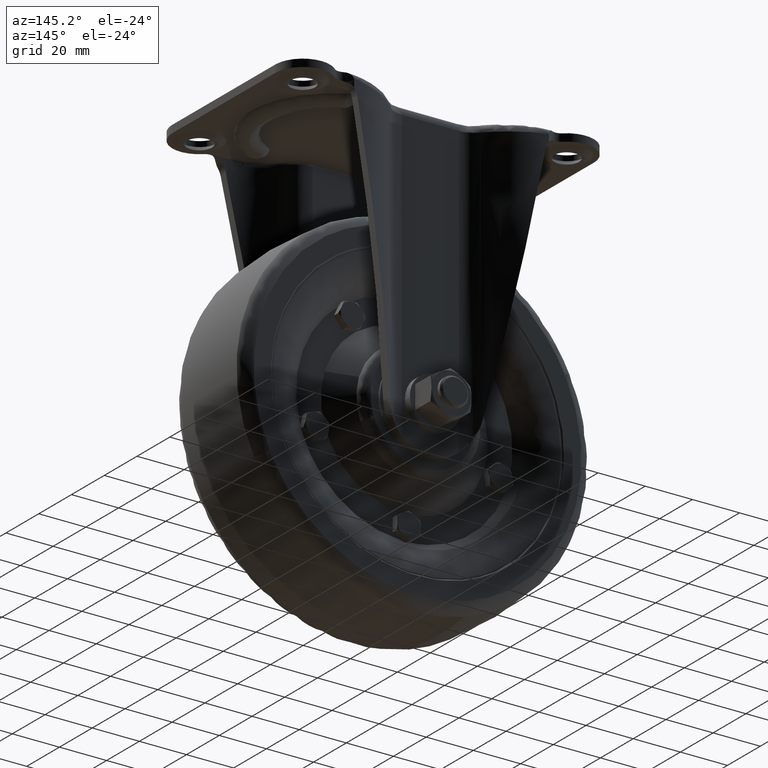
[diagram: clean part render]
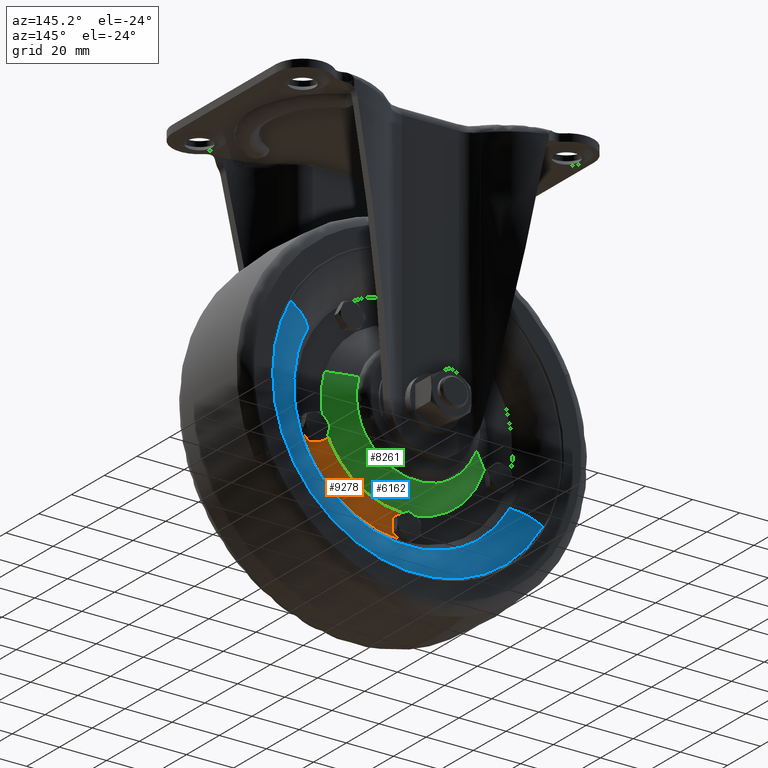
[diagram: same view with three faces highlighted in distinct colors, each labeled with its STEP entity id]
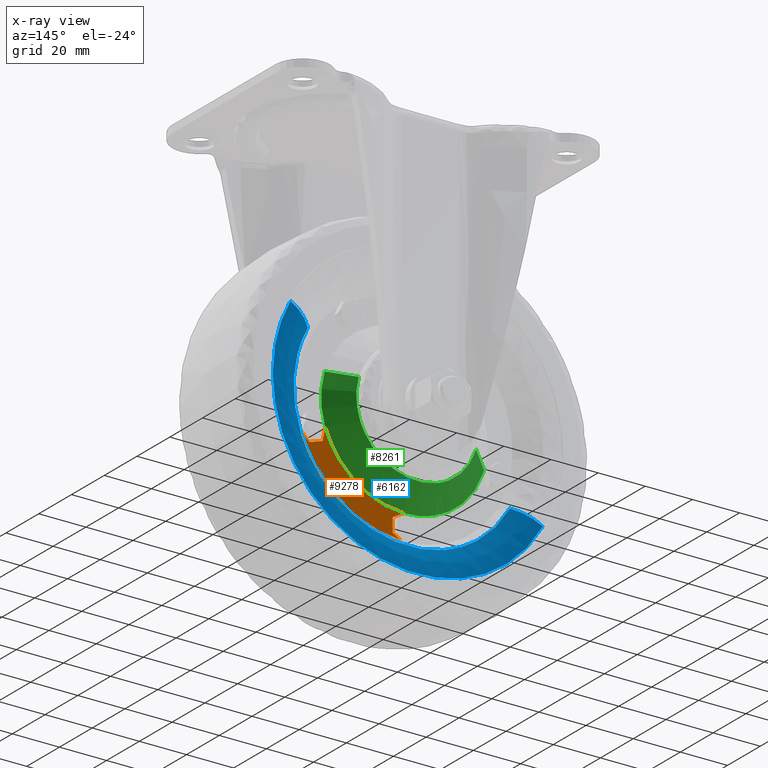
[diagram: x-ray of the same camera — body ghosted, the three highlighted faces saturated]
A machine part, auxiliary view with three faces highlighted in distinct colors.
The next image is the same camera in x-ray (body ghosted, the three faces saturated) — at least one of them is partly hidden behind the body in this view.
Their STEP definitions:

[orange] entity #9278 — the highlighted face is a freeform B-spline surface patch.
#8214=CARTESIAN_POINT('',(33.554546786596561,13.0,-123.130977096347000));
#8215=VERTEX_POINT('',#8214);
#8223=CARTESIAN_POINT('',(0.217257236694273,13.0,-147.351936153729210));
#8224=VERTEX_POINT('',#8223);
#8225=CARTESIAN_POINT('',(0.217257236694266,13.0,-147.351936153729210));
#8226=CARTESIAN_POINT('',(25.571472345056275,13.000000000000005,-147.196118388223200));
#8227=CARTESIAN_POINT('',(33.554546786596582,13.0,-123.130977096347000));
#8235=(BOUNDED_CURVE()B_SPLINE_CURVE(2,(#8225,#8226,#8227),.UNSPECIFIED.,.F.,.U.)CURVE()GEOMETRIC_REPRESENTATION_ITEM()QUASI_UNIFORM_CURVE()RATIONAL_B_SPLINE_CURVE((1.0,0.812613957784510,1.0))REPRESENTATION_ITEM(''));
#8236=EDGE_CURVE('',#8224,#8215,#8235,.T.);
#8301=CARTESIAN_POINT('',(1.566543894012149,13.0,-157.869061000644990));
#8302=VERTEX_POINT('',#8301);
#8310=CARTESIAN_POINT('',(42.976972618874001,13.000000000021791,-128.106030985741710));
#8311=VERTEX_POINT('',#8310);
#8312=CARTESIAN_POINT('',(1.566543894012149,13.0,-157.869061000644990));
#8313=CARTESIAN_POINT('',(32.215268684254141,13.000000000010891,-156.822327923637720));
#8314=CARTESIAN_POINT('',(42.976972618874008,13.000000000021783,-128.106030985741710));
#8322=(BOUNDED_CURVE()B_SPLINE_CURVE(2,(#8312,#8313,#8314),.UNSPECIFIED.,.F.,.U.)B_SPLINE_CURVE_WITH_KNOTS((3,3),(0.0,0.990849707425432),.UNSPECIFIED.)CURVE()GEOMETRIC_REPRESENTATION_ITEM()RATIONAL_B_SPLINE_CURVE((1.0,0.830176557809240,0.996892131635869))REPRESENTATION_ITEM(''));
#8323=EDGE_CURVE('',#8302,#8311,#8322,.T.);
#8353=CARTESIAN_POINT('',(43.139974311081950,13.0,-127.664195560999200));
#8354=VERTEX_POINT('',#8353);
#8355=CARTESIAN_POINT('',(42.976972618874001,13.000000000021787,-128.106030985741630));
#8356=CARTESIAN_POINT('',(43.059606915109107,13.000000000010896,-127.885531425195920));
#8357=CARTESIAN_POINT('',(43.139974311081950,13.0,-127.664195560999200));
#8365=(BOUNDED_CURVE()B_SPLINE_CURVE(2,(#8355,#8356,#8357),.UNSPECIFIED.,.F.,.U.)B_SPLINE_CURVE_WITH_KNOTS((3,3),(0.990849707425432,1.0),.UNSPECIFIED.)CURVE()GEOMETRIC_REPRESENTATION_ITEM()RATIONAL_B_SPLINE_CURVE((0.996892131635869,0.998431715556436,1.0))REPRESENTATION_ITEM(''));
#8366=EDGE_CURVE('',#8311,#8354,#8365,.T.);
#9080=CARTESIAN_POINT('',(40.193694121953449,13.0,-130.317038376803310));
#9081=VERTEX_POINT('',#9080);
#9091=CARTESIAN_POINT('',(40.193694121953449,13.0,-130.317038376803310));
#9092=CARTESIAN_POINT('',(43.139974311081950,13.0,-127.664195560999200));
#9093=QUASI_UNIFORM_CURVE('',1,(#9091,#9092),.UNSPECIFIED.,.F.,.U.);
#9094=EDGE_CURVE('',#9081,#8354,#9093,.T.);
#9104=CARTESIAN_POINT('',(34.702766986663953,13.0,-128.532927324363610));
#9105=VERTEX_POINT('',#9104);
#9114=CARTESIAN_POINT('',(34.702766986663953,13.0,-128.532927324363610));
#9115=CARTESIAN_POINT('',(40.193694121953449,13.0,-130.317038376803310));
#9116=QUASI_UNIFORM_CURVE('',1,(#9114,#9115),.UNSPECIFIED.,.F.,.U.);
#9117=EDGE_CURVE('',#9105,#9081,#9116,.T.);
#9131=CARTESIAN_POINT('',(33.554546786596561,13.0,-123.130977096347000));
#9132=CARTESIAN_POINT('',(34.702766986663953,13.0,-128.532927324363610));
#9133=QUASI_UNIFORM_CURVE('',1,(#9131,#9132),.UNSPECIFIED.,.F.,.U.);
#9134=EDGE_CURVE('',#8215,#9105,#9133,.T.);
#9152=CARTESIAN_POINT('',(4.999997651370855,13.0,-155.886755360427800));
#9153=VERTEX_POINT('',#9152);
#9159=CARTESIAN_POINT('',(1.566543894012149,13.0,-157.869061000644990));
#9160=CARTESIAN_POINT('',(4.999997651370855,13.0,-155.886755360427800));
#9161=QUASI_UNIFORM_CURVE('',1,(#9159,#9160),.UNSPECIFIED.,.F.,.U.);
#9162=EDGE_CURVE('',#8302,#9153,#9161,.T.);
#9226=CARTESIAN_POINT('',(4.999997342852353,13.0,-150.113253001869910));
#9227=VERTEX_POINT('',#9226);
#9237=CARTESIAN_POINT('',(4.999997342852353,13.0,-150.113253001869910));
#9238=CARTESIAN_POINT('',(0.217257236694273,13.0,-147.351936153729210));
#9239=QUASI_UNIFORM_CURVE('',1,(#9237,#9238),.UNSPECIFIED.,.F.,.U.);
#9240=EDGE_CURVE('',#9227,#8224,#9239,.T.);
#9254=CARTESIAN_POINT('',(4.999997651370855,13.0,-155.886755360427800));
#9255=CARTESIAN_POINT('',(4.999997342852353,13.0,-150.113253001869910));
#9256=QUASI_UNIFORM_CURVE('',1,(#9254,#9255),.UNSPECIFIED.,.F.,.U.);
#9257=EDGE_CURVE('',#9153,#9227,#9256,.T.);
#9262=CARTESIAN_POINT('',(-5.057574106259793,13.0,-157.971078725620200));
#9263=CARTESIAN_POINT('',(9.531333929291307,13.0,-113.071036712096300));
#9264=CARTESIAN_POINT('',(31.280791425698741,13.0,-169.778129435022810));
#9265=CARTESIAN_POINT('',(45.869699461249837,13.0,-124.878087421498800));
#9266=B_SPLINE_SURFACE_WITH_KNOTS('',1,1,((#9262,#9264),(#9263,#9265)),.UNSPECIFIED.,.F.,.F.,.U.,(2,2),(2,2),(0.0,47.210696866603172),(0.0,38.208417694584469),.UNSPECIFIED.);
#9267=ORIENTED_EDGE('',*,*,#8236,.T.);
#9268=ORIENTED_EDGE('',*,*,#9134,.T.);
#9269=ORIENTED_EDGE('',*,*,#9117,.T.);
#9270=ORIENTED_EDGE('',*,*,#9094,.T.);
#9271=ORIENTED_EDGE('',*,*,#8366,.F.);
#9272=ORIENTED_EDGE('',*,*,#8323,.F.);
#9273=ORIENTED_EDGE('',*,*,#9162,.T.);
#9274=ORIENTED_EDGE('',*,*,#9257,.T.);
#9275=ORIENTED_EDGE('',*,*,#9240,.T.);
#9276=EDGE_LOOP('',(#9267,#9268,#9269,#9270,#9271,#9272,#9273,#9274,#9275));
#9277=FACE_OUTER_BOUND('',#9276,.T.);
#9278=ADVANCED_FACE('',(#9277),#9266,.T.);

[blue] entity #6162 — the highlighted face is a freeform B-spline surface patch.
#5783=CARTESIAN_POINT('',(-18.870801556832578,20.500000000000000,-170.078349246225800));
#5784=VERTEX_POINT('',#5783);
#5785=CARTESIAN_POINT('',(53.513581296547933,20.499999999999989,-82.580661048150475));
#5786=VERTEX_POINT('',#5785);
#5787=CARTESIAN_POINT('',(-18.870801556832578,20.500000000000000,-170.078349246225800));
#5788=CARTESIAN_POINT('',(39.207544828135426,20.499999999999993,-188.949147942164470));
#5789=CARTESIAN_POINT('',(58.078343523351947,20.499999999999989,-130.870801557287710));
#5790=CARTESIAN_POINT('',(66.244467328839718,20.499999999999993,-105.738056798735040));
#5791=CARTESIAN_POINT('',(53.513581296547933,20.500000000000000,-82.580661048150475));
#5799=(BOUNDED_CURVE()B_SPLINE_CURVE(2,(#5787,#5788,#5789,#5790,#5791),.UNSPECIFIED.,.F.,.U.)B_SPLINE_CURVE_WITH_KNOTS((3,2,3),(0.0,0.250000000000000,0.379740687157083),.UNSPECIFIED.)CURVE()GEOMETRIC_REPRESENTATION_ITEM()RATIONAL_B_SPLINE_CURVE((1.0,0.707106781186548,1.0,0.847999330109972,0.853764031098897))REPRESENTATION_ITEM(''));
#5800=EDGE_CURVE('',#5784,#5786,#5799,.T.);
#5817=CARTESIAN_POINT('',(-53.513587018593817,20.499999999999989,-141.419344673895410));
#5818=VERTEX_POINT('',#5817);
#5834=CARTESIAN_POINT('',(-53.513587018593832,20.500000000000000,-141.419344673895380));
#5835=CARTESIAN_POINT('',(-41.865645594811390,20.500000000000000,-162.606871493840540));
#5836=CARTESIAN_POINT('',(-18.870801556832578,20.500000000000000,-170.078349246225800));
#5844=(BOUNDED_CURVE()B_SPLINE_CURVE(2,(#5834,#5835,#5836),.UNSPECIFIED.,.F.,.U.)B_SPLINE_CURVE_WITH_KNOTS((3,3),(0.879740687157083,1.0),.UNSPECIFIED.)CURVE()GEOMETRIC_REPRESENTATION_ITEM()RATIONAL_B_SPLINE_CURVE((0.853764031098897,0.859107451076576,1.0))REPRESENTATION_ITEM(''));
#5845=EDGE_CURVE('',#5818,#5784,#5844,.T.);
#6060=CARTESIAN_POINT('',(-42.418873943854273,15.294726801716376,-135.319974553232700));
#6061=CARTESIAN_POINT('',(-19.098902251644503,15.294726801716386,-177.738845636064040));
#6062=CARTESIAN_POINT('',(23.319968831186827,15.294726801716376,-154.418873943854320));
#6063=CARTESIAN_POINT('',(65.738839914018143,15.294726801716386,-131.098902251644520));
#6064=CARTESIAN_POINT('',(42.418868221808367,15.294726801716376,-88.680031168813144));
#6065=CARTESIAN_POINT('',(-47.267542998589207,20.769868129758610,-137.985552920005400));
#6066=CARTESIAN_POINT('',(-21.281992939606816,20.769868129758606,-185.253093057571700));
#6067=CARTESIAN_POINT('',(25.985547197959470,20.769868129758610,-159.267542998589280));
#6068=CARTESIAN_POINT('',(73.253087335525748,20.769868129758606,-133.281992939606820));
#6069=CARTESIAN_POINT('',(47.267537276543337,20.769868129758610,-86.014452802040509));
#6070=CARTESIAN_POINT('',(-54.084327204597940,20.488212970931325,-141.733111746019570));
#6071=CARTESIAN_POINT('',(-24.351218319601262,20.488212970931325,-195.817436089594570));
#6072=CARTESIAN_POINT('',(29.733106023973740,20.488212970931325,-166.084327204597940));
#6073=CARTESIAN_POINT('',(83.817430367548766,20.488212970931325,-136.351218319601290));
#6074=CARTESIAN_POINT('',(54.084321482552056,20.488212970931325,-82.266893976026239));
#6082=(BOUNDED_SURFACE()B_SPLINE_SURFACE(2,2,((#6060,#6065,#6070),(#6061,#6066,#6071),(#6062,#6067,#6072),(#6063,#6068,#6073),(#6064,#6069,#6074)),.UNSPECIFIED.,.F.,.F.,.U.)B_SPLINE_SURFACE_WITH_KNOTS((3,2,3),(3,3),(0.0,102.258538464007200,204.517076928014400),(0.0,14.901338644433320),.UNSPECIFIED.)GEOMETRIC_REPRESENTATION_ITEM()RATIONAL_B_SPLINE_SURFACE(((0.932049626559043,0.855259187774871,0.931562023693775),(0.659058611342288,0.604759571347710,0.658713824049731),(0.932049626559043,0.855259187774871,0.931562023693775),(0.659058611342288,0.604759571347710,0.658713824049731),(0.932049626559043,0.855259187774871,0.931562023693775)))REPRESENTATION_ITEM('')SURFACE());
#6083=ORIENTED_EDGE('',*,*,#5845,.F.);
#6084=CARTESIAN_POINT('',(-42.831620992549666,15.744237116279001,-135.546884163149510));
#6085=VERTEX_POINT('',#6084);
#6086=CARTESIAN_POINT('',(-42.831620992549674,15.744237116279001,-135.546884163149460));
#6087=CARTESIAN_POINT('',(-47.359639724146632,20.499999999471875,-138.036183523247250));
#6088=CARTESIAN_POINT('',(-53.513587018593824,20.499999999999993,-141.419344673895470));
#6096=(BOUNDED_CURVE()B_SPLINE_CURVE(2,(#6086,#6087,#6088),.UNSPECIFIED.,.F.,.U.)B_SPLINE_CURVE_WITH_KNOTS((3,3),(-1.547021417535113,-0.456797857099042),.UNSPECIFIED.)CURVE()GEOMETRIC_REPRESENTATION_ITEM()RATIONAL_B_SPLINE_CURVE((0.925390761317573,0.861895910437845,0.924947443623621))REPRESENTATION_ITEM(''));
#6097=EDGE_CURVE('',#6085,#5818,#6096,.T.);
#6098=ORIENTED_EDGE('',*,*,#6097,.F.);
#6099=CARTESIAN_POINT('',(-15.103959291285809,15.744237115458660,-158.485200837227810));
#6100=VERTEX_POINT('',#6099);
#6101=CARTESIAN_POINT('',(-42.831620992549674,15.744237116279004,-135.546884163149490));
#6102=CARTESIAN_POINT('',(-33.508751164975529,15.744237115868827,-152.505121443036840));
#6103=CARTESIAN_POINT('',(-15.103959291285809,15.744237115458660,-158.485200837227810));
#6111=(BOUNDED_CURVE()B_SPLINE_CURVE(2,(#6101,#6102,#6103),.UNSPECIFIED.,.F.,.U.)B_SPLINE_CURVE_WITH_KNOTS((3,3),(0.879740687157076,1.0),.UNSPECIFIED.)CURVE()GEOMETRIC_REPRESENTATION_ITEM()RATIONAL_B_SPLINE_CURVE((0.853764031098896,0.859107451076568,1.0))REPRESENTATION_ITEM(''));
#6112=EDGE_CURVE('',#6085,#6100,#6111,.T.);
#6113=ORIENTED_EDGE('',*,*,#6112,.T.);
#6114=CARTESIAN_POINT('',(45.768979128128777,15.744237115969790,-129.152361837413590));
#6115=VERTEX_POINT('',#6114);
#6116=CARTESIAN_POINT('',(-15.103959291285809,15.744237115458660,-158.485200837227810));
#6117=CARTESIAN_POINT('',(29.361773356178674,15.744237115592469,-172.932993205130770));
#6118=CARTESIAN_POINT('',(45.768979128128784,15.744237115969797,-129.152361837413620));
#6126=(BOUNDED_CURVE()B_SPLINE_CURVE(2,(#6116,#6117,#6118),.UNSPECIFIED.,.F.,.U.)B_SPLINE_CURVE_WITH_KNOTS((3,3),(0.0,0.242221278145373),.UNSPECIFIED.)CURVE()GEOMETRIC_REPRESENTATION_ITEM()RATIONAL_B_SPLINE_CURVE((1.0,0.716220120715573,0.982340442008854))REPRESENTATION_ITEM(''));
#6127=EDGE_CURVE('',#6100,#6115,#6126,.T.);
#6128=ORIENTED_EDGE('',*,*,#6127,.T.);
#6129=CARTESIAN_POINT('',(42.831615270503782,15.744237116279010,-88.453121558896470));
#6130=VERTEX_POINT('',#6129);
#6131=CARTESIAN_POINT('',(45.768979128128784,15.744237115969797,-129.152361837413620));
#6132=CARTESIAN_POINT('',(46.149828384158390,15.744237115980090,-128.136111958137720));
#6133=CARTESIAN_POINT('',(46.485195115778772,15.744237115990259,-127.103959291005490));
#6134=CARTESIAN_POINT('',(53.021260714113666,15.744237116188440,-106.988017834090100));
#6135=CARTESIAN_POINT('',(42.831615270503789,15.744237116279004,-88.453121558896456));
#6143=(BOUNDED_CURVE()B_SPLINE_CURVE(2,(#6131,#6132,#6133,#6134,#6135),.UNSPECIFIED.,.F.,.U.)B_SPLINE_CURVE_WITH_KNOTS((3,2,3),(0.242221278145373,0.250000000000000,0.379740687157076),.UNSPECIFIED.)CURVE()GEOMETRIC_REPRESENTATION_ITEM()RATIONAL_B_SPLINE_CURVE((0.982340442008854,0.990886660470975,1.0,0.847999330109979,0.853764031098896))REPRESENTATION_ITEM(''));
#6144=EDGE_CURVE('',#6115,#6130,#6143,.T.);
#6145=ORIENTED_EDGE('',*,*,#6144,.T.);
#6146=CARTESIAN_POINT('',(42.831615270503775,15.744237116279008,-88.453121558896470));
#6147=CARTESIAN_POINT('',(47.359634002100741,20.499999999471893,-85.963822198798624));
#6148=CARTESIAN_POINT('',(53.513581296547933,20.499999999999989,-82.580661048150475));
#6156=(BOUNDED_CURVE()B_SPLINE_CURVE(2,(#6146,#6147,#6148),.UNSPECIFIED.,.F.,.U.)B_SPLINE_CURVE_WITH_KNOTS((3,3),(-1.547021417535114,-0.456797857099040),.UNSPECIFIED.)CURVE()GEOMETRIC_REPRESENTATION_ITEM()RATIONAL_B_SPLINE_CURVE((0.925390761317574,0.861895910437845,0.924947443623621))REPRESENTATION_ITEM(''));
#6157=EDGE_CURVE('',#6130,#5786,#6156,.T.);
#6158=ORIENTED_EDGE('',*,*,#6157,.T.);
#6159=ORIENTED_EDGE('',*,*,#5800,.F.);
#6160=EDGE_LOOP('',(#6083,#6098,#6113,#6128,#6145,#6158,#6159));
#6161=FACE_OUTER_BOUND('',#6160,.T.);
#6162=ADVANCED_FACE('',(#6161),#6082,.T.);

[green] entity #8261 — the highlighted face is a freeform B-spline surface patch.
#4871=CARTESIAN_POINT('',(-24.834282549048439,21.000000000294609,-119.522568304341310));
#4872=VERTEX_POINT('',#4871);
#4888=CARTESIAN_POINT('',(-33.834428966441351,12.999999999955470,-122.248807650006600));
#4889=VERTEX_POINT('',#4888);
#4890=CARTESIAN_POINT('',(-24.834282549048439,21.000000000294609,-119.522568304341310));
#4891=CARTESIAN_POINT('',(-33.834428966441351,12.999999999955470,-122.248807650006600));
#4892=QUASI_UNIFORM_CURVE('',1,(#4890,#4891),.UNSPECIFIED.,.F.,.U.);
#4893=EDGE_CURVE('',#4872,#4889,#4892,.T.);
#4961=CARTESIAN_POINT('',(33.834423244221483,12.999999999999959,-101.751198071645400));
#4962=VERTEX_POINT('',#4961);
#4976=CARTESIAN_POINT('',(24.834276827002551,21.000000000294591,-104.477437417704610));
#4977=VERTEX_POINT('',#4976);
#4978=CARTESIAN_POINT('',(24.834276827002551,21.000000000294591,-104.477437417704610));
#4979=CARTESIAN_POINT('',(33.834423244221483,12.999999999999959,-101.751198071645400));
#4980=QUASI_UNIFORM_CURVE('',1,(#4978,#4979),.UNSPECIFIED.,.F.,.U.);
#4981=EDGE_CURVE('',#4977,#4962,#4980,.T.);
#5968=CARTESIAN_POINT('',(24.244535870103519,21.000000000697501,-121.248396245354000));
#5969=VERTEX_POINT('',#5968);
#5970=CARTESIAN_POINT('',(24.244535870103512,21.000000000697497,-121.248396245354030));
#5971=CARTESIAN_POINT('',(24.477022300276325,21.000000000684494,-120.638936198985330));
#5972=CARTESIAN_POINT('',(24.678593185508412,21.000000000670980,-120.018564804930800));
#5973=CARTESIAN_POINT('',(27.195463611269304,21.000000000502247,-112.272434142825650));
#5974=CARTESIAN_POINT('',(24.834276827002547,21.000000000294584,-104.477437417704640));
#5982=(BOUNDED_CURVE()B_SPLINE_CURVE(2,(#5970,#5971,#5972,#5973,#5974),.UNSPECIFIED.,.F.,.U.)B_SPLINE_CURVE_WITH_KNOTS((3,2,3),(0.241203951720446,0.250000000000000,0.348205478669145),.UNSPECIFIED.)CURVE()GEOMETRIC_REPRESENTATION_ITEM()RATIONAL_B_SPLINE_CURVE((0.980114737960774,0.989694788426252,1.0,0.884945124989913,0.860282402568500))REPRESENTATION_ITEM(''));
#5983=EDGE_CURVE('',#5969,#4977,#5982,.T.);
#6026=CARTESIAN_POINT('',(-8.018564804935465,21.0,-136.678598907578700));
#6027=VERTEX_POINT('',#6026);
#6028=CARTESIAN_POINT('',(-8.018564804935465,21.0,-136.678598907578700));
#6029=CARTESIAN_POINT('',(15.449713463332060,21.000000000348759,-144.303904765985830));
#6030=CARTESIAN_POINT('',(24.244535870103512,21.000000000697497,-121.248396245354030));
#6038=(BOUNDED_CURVE()B_SPLINE_CURVE(2,(#6028,#6029,#6030),.UNSPECIFIED.,.F.,.U.)B_SPLINE_CURVE_WITH_KNOTS((3,3),(0.0,0.241203951720446),.UNSPECIFIED.)CURVE()GEOMETRIC_REPRESENTATION_ITEM()RATIONAL_B_SPLINE_CURVE((1.0,0.717411992760296,0.980114737960774))REPRESENTATION_ITEM(''));
#6039=EDGE_CURVE('',#6027,#5969,#6038,.T.);
#6041=CARTESIAN_POINT('',(-24.834282549048442,21.000000000294602,-119.522568304341350));
#6042=CARTESIAN_POINT('',(-20.905935515801239,21.000000000109679,-132.491238324140910));
#6043=CARTESIAN_POINT('',(-8.018564804935465,21.0,-136.678598907578700));
#6051=(BOUNDED_CURVE()B_SPLINE_CURVE(2,(#6041,#6042,#6043),.UNSPECIFIED.,.F.,.U.)B_SPLINE_CURVE_WITH_KNOTS((3,3),(0.848205478669145,1.0),.UNSPECIFIED.)CURVE()GEOMETRIC_REPRESENTATION_ITEM()RATIONAL_B_SPLINE_CURVE((0.860282402568500,0.822161656196635,1.0))REPRESENTATION_ITEM(''));
#6052=EDGE_CURVE('',#4872,#6027,#6051,.T.);
#7450=CARTESIAN_POINT('',(33.502387964433382,13.107275845775060,-122.885589180979590));
#7451=VERTEX_POINT('',#7450);
#7457=CARTESIAN_POINT('',(33.688820723031057,13.0,-122.717724400813790));
#7458=VERTEX_POINT('',#7457);
#7459=CARTESIAN_POINT('',(33.688820723031100,12.999999999999959,-122.717724400813910));
#7460=CARTESIAN_POINT('',(33.626727218657152,13.035917892197640,-122.773633633396500));
#7461=CARTESIAN_POINT('',(33.564583003334420,13.071677469861919,-122.829588526314400));
#7462=CARTESIAN_POINT('',(33.502387964433410,13.107275845775030,-122.885589180979590));
#7463=B_SPLINE_CURVE_WITH_KNOTS('',3,(#7459,#7460,#7461,#7462),.UNSPECIFIED.,.F.,.U.,(4,4),(0.000000506416679,0.000273350441401),.UNSPECIFIED.);
#7464=EDGE_CURVE('',#7458,#7451,#7463,.T.);
#7923=CARTESIAN_POINT('',(-33.502393492435601,13.107275845775060,-122.885589778184500));
#7924=VERTEX_POINT('',#7923);
#7933=CARTESIAN_POINT('',(-33.688826263716052,13.0,-122.717724970882500));
#7934=VERTEX_POINT('',#7933);
#7940=CARTESIAN_POINT('',(-33.502393492435630,13.107275845775099,-122.885589778184500));
#7941=CARTESIAN_POINT('',(-33.564588535573108,13.071677469914610,-122.829589114461500));
#7942=CARTESIAN_POINT('',(-33.626732755123442,13.035917892249991,-122.773634212498100));
#7943=CARTESIAN_POINT('',(-33.688826263715967,13.000000000000060,-122.717724970882400));
#7944=B_SPLINE_CURVE_WITH_KNOTS('',3,(#7940,#7941,#7942,#7943),.UNSPECIFIED.,.F.,.U.,(4,4),(0.000000237908336,0.000273081958420),.UNSPECIFIED.);
#7945=EDGE_CURVE('',#7924,#7934,#7944,.T.);
#7965=CARTESIAN_POINT('',(-33.554552320288593,13.0,-123.130977664143500));
#7966=VERTEX_POINT('',#7965);
#7967=CARTESIAN_POINT('',(-33.554552320288593,13.000000000000030,-123.130977664143500));
#7968=CARTESIAN_POINT('',(-33.537180242388828,13.035917892197711,-123.049248498707600));
#7969=CARTESIAN_POINT('',(-33.519793976941394,13.071677469861971,-122.967452586136600));
#7970=CARTESIAN_POINT('',(-33.502393492435630,13.107275845775080,-122.885589778184500));
#7971=B_SPLINE_CURVE_WITH_KNOTS('',3,(#7967,#7968,#7969,#7970),.UNSPECIFIED.,.F.,.U.,(4,4),(0.000000506416680,0.000273350441401),.UNSPECIFIED.);
#7972=EDGE_CURVE('',#7966,#7924,#7971,.T.);
#8022=CARTESIAN_POINT('',(-0.217262360529020,13.0,-147.351936157405590));
#8023=VERTEX_POINT('',#8022);
#8024=CARTESIAN_POINT('',(-33.554552320288643,13.0,-123.130977664143500));
#8025=CARTESIAN_POINT('',(-25.571477471527768,13.000000000000004,-147.196118820933350));
#8026=CARTESIAN_POINT('',(-0.217262360529041,13.0,-147.351936157405500));
#8034=(BOUNDED_CURVE()B_SPLINE_CURVE(2,(#8024,#8025,#8026),.UNSPECIFIED.,.F.,.U.)CURVE()GEOMETRIC_REPRESENTATION_ITEM()QUASI_UNIFORM_CURVE()RATIONAL_B_SPLINE_CURVE((1.0,0.812613957784509,1.0))REPRESENTATION_ITEM(''));
#8035=EDGE_CURVE('',#7966,#8023,#8034,.T.);
#8096=CARTESIAN_POINT('',(-33.834428966441351,12.999999999955476,-122.248807650006530));
#8097=CARTESIAN_POINT('',(-33.763255820588910,12.999999999977739,-122.483771881708880));
#8098=CARTESIAN_POINT('',(-33.688826263716052,13.0,-122.717724970882500));
#8106=(BOUNDED_CURVE()B_SPLINE_CURVE(2,(#8096,#8097,#8098),.UNSPECIFIED.,.F.,.U.)B_SPLINE_CURVE_WITH_KNOTS((3,3),(0.988110789137994,1.0),.UNSPECIFIED.)CURVE()GEOMETRIC_REPRESENTATION_ITEM()RATIONAL_B_SPLINE_CURVE((0.995597230946976,0.997772127831503,1.0))REPRESENTATION_ITEM(''));
#8107=EDGE_CURVE('',#4889,#7934,#8106,.T.);
#8150=CARTESIAN_POINT('',(33.688820723031093,13.0,-122.717724400813790));
#8151=CARTESIAN_POINT('',(37.016761719454031,13.000000000000004,-112.257066628506850));
#8152=CARTESIAN_POINT('',(33.834423244221433,13.0,-101.751198071645400));
#8160=(BOUNDED_CURVE()B_SPLINE_CURVE(2,(#8150,#8151,#8152),.UNSPECIFIED.,.F.,.U.)B_SPLINE_CURVE_WITH_KNOTS((3,3),(0.0,0.484421893107671),.UNSPECIFIED.)CURVE()GEOMETRIC_REPRESENTATION_ITEM()RATIONAL_B_SPLINE_CURVE((1.0,0.909226098688018,0.906397927612675))REPRESENTATION_ITEM(''));
#8161=EDGE_CURVE('',#7458,#4962,#8160,.T.);
#8190=CARTESIAN_POINT('',(-24.609278887970891,21.200000000714951,-119.454412320291600));
#8191=CARTESIAN_POINT('',(-17.154869428702213,21.200000000714958,-144.063688347239550));
#8192=CARTESIAN_POINT('',(7.454406598245718,21.200000000714951,-136.609278887970900));
#8193=CARTESIAN_POINT('',(32.063682625193643,21.200000000714958,-129.154869428702230));
#8194=CARTESIAN_POINT('',(24.609273165924989,21.200000000714951,-104.545593401754300));
#8195=CARTESIAN_POINT('',(-34.065057718227493,12.794999999982119,-122.318667533644200));
#8196=CARTESIAN_POINT('',(-23.746393045606290,12.794999999982123,-156.383722390848620));
#8197=CARTESIAN_POINT('',(10.318661811598259,12.794999999982119,-146.065057718227510));
#8198=CARTESIAN_POINT('',(44.383716668802791,12.794999999982123,-135.746393045606310));
#8199=CARTESIAN_POINT('',(34.065051996181587,12.794999999982119,-101.681338188401700));
#8207=(BOUNDED_SURFACE()B_SPLINE_SURFACE(2,1,((#8190,#8195),(#8191,#8196),(#8192,#8197),(#8193,#8198),(#8194,#8199)),.UNSPECIFIED.,.F.,.F.,.U.)B_SPLINE_SURFACE_WITH_KNOTS((3,2,3),(2,2),(0.0,58.973369675182319,117.946739350364600),(0.0,12.971496880752939),.UNSPECIFIED.)GEOMETRIC_REPRESENTATION_ITEM()RATIONAL_B_SPLINE_SURFACE(((1.0,1.0),(0.707106781186548,0.707106781186548),(1.0,1.0),(0.707106781186548,0.707106781186548),(1.0,1.0)))REPRESENTATION_ITEM('')SURFACE());
#8208=ORIENTED_EDGE('',*,*,#6052,.T.);
#8209=ORIENTED_EDGE('',*,*,#6039,.T.);
#8210=ORIENTED_EDGE('',*,*,#5983,.T.);
#8211=ORIENTED_EDGE('',*,*,#4981,.T.);
#8212=ORIENTED_EDGE('',*,*,#8161,.F.);
#8213=ORIENTED_EDGE('',*,*,#7464,.T.);
#8214=CARTESIAN_POINT('',(33.554546786596561,13.0,-123.130977096347000));
#8215=VERTEX_POINT('',#8214);
#8216=CARTESIAN_POINT('',(33.502387964433382,13.107275845775060,-122.885589180979590));
#8217=CARTESIAN_POINT('',(33.519788447042522,13.071677469914579,-122.967451998749600));
#8218=CARTESIAN_POINT('',(33.537174710593362,13.035917892249950,-123.049247921123500));
#8219=CARTESIAN_POINT('',(33.554546786596532,13.000000000000030,-123.130977096347000));
#8220=B_SPLINE_CURVE_WITH_KNOTS('',3,(#8216,#8217,#8218,#8219),.UNSPECIFIED.,.F.,.U.,(4,4),(0.000000250962708,0.000273095012792),.UNSPECIFIED.);
#8221=EDGE_CURVE('',#7451,#8215,#8220,.T.);
#8222=ORIENTED_EDGE('',*,*,#8221,.T.);
#8223=CARTESIAN_POINT('',(0.217257236694273,13.0,-147.351936153729210));
#8224=VERTEX_POINT('',#8223);
#8225=CARTESIAN_POINT('',(0.217257236694266,13.0,-147.351936153729210));
#8226=CARTESIAN_POINT('',(25.571472345056275,13.000000000000005,-147.196118388223200));
#8227=CARTESIAN_POINT('',(33.554546786596582,13.0,-123.130977096347000));
#8235=(BOUNDED_CURVE()B_SPLINE_CURVE(2,(#8225,#8226,#8227),.UNSPECIFIED.,.F.,.U.)CURVE()GEOMETRIC_REPRESENTATION_ITEM()QUASI_UNIFORM_CURVE()RATIONAL_B_SPLINE_CURVE((1.0,0.812613957784510,1.0))REPRESENTATION_ITEM(''));
#8236=EDGE_CURVE('',#8224,#8215,#8235,.T.);
#8237=ORIENTED_EDGE('',*,*,#8236,.F.);
#8238=CARTESIAN_POINT('',(-0.000002547053676,13.107275845775060,-147.226501133642190));
#8239=VERTEX_POINT('',#8238);
#8240=CARTESIAN_POINT('',(0.217257236694181,12.999999999999940,-147.351936153729210));
#8241=CARTESIAN_POINT('',(0.144896448633602,13.035917892197610,-147.310158624785290));
#8242=CARTESIAN_POINT('',(0.072476564468602,13.071677469861880,-147.268346976682610));
#8243=CARTESIAN_POINT('',(-0.000002547053789,13.107275845774989,-147.226501133642300));
#8244=B_SPLINE_CURVE_WITH_KNOTS('',3,(#8240,#8241,#8242,#8243),.UNSPECIFIED.,.F.,.U.,(4,4),(0.000000506416680,0.000273350441401),.UNSPECIFIED.);
#8245=EDGE_CURVE('',#8224,#8239,#8244,.T.);
#8246=ORIENTED_EDGE('',*,*,#8245,.T.);
#8247=CARTESIAN_POINT('',(-0.000002547053704,13.107275845775099,-147.226501133642100));
#8248=CARTESIAN_POINT('',(-0.072481668499691,13.071677469914610,-147.268346977912610));
#8249=CARTESIAN_POINT('',(-0.144901562573885,13.035917892249969,-147.310158627240810));
#8250=CARTESIAN_POINT('',(-0.217262360529063,13.000000000000030,-147.351936157405500));
#8251=B_SPLINE_CURVE_WITH_KNOTS('',3,(#8247,#8248,#8249,#8250),.UNSPECIFIED.,.F.,.U.,(4,4),(0.000000292459872,0.000273136509955),.UNSPECIFIED.);
#8252=EDGE_CURVE('',#8239,#8023,#8251,.T.);
#8253=ORIENTED_EDGE('',*,*,#8252,.T.);
#8254=ORIENTED_EDGE('',*,*,#8035,.F.);
#8255=ORIENTED_EDGE('',*,*,#7972,.T.);
#8256=ORIENTED_EDGE('',*,*,#7945,.T.);
#8257=ORIENTED_EDGE('',*,*,#8107,.F.);
#8258=ORIENTED_EDGE('',*,*,#4893,.F.);
#8259=EDGE_LOOP('',(#8208,#8209,#8210,#8211,#8212,#8213,#8222,#8237,#8246,#8253,#8254,#8255,#8256,#8257,#8258));
#8260=FACE_OUTER_BOUND('',#8259,.T.);
#8261=ADVANCED_FACE('',(#8260),#8207,.T.);